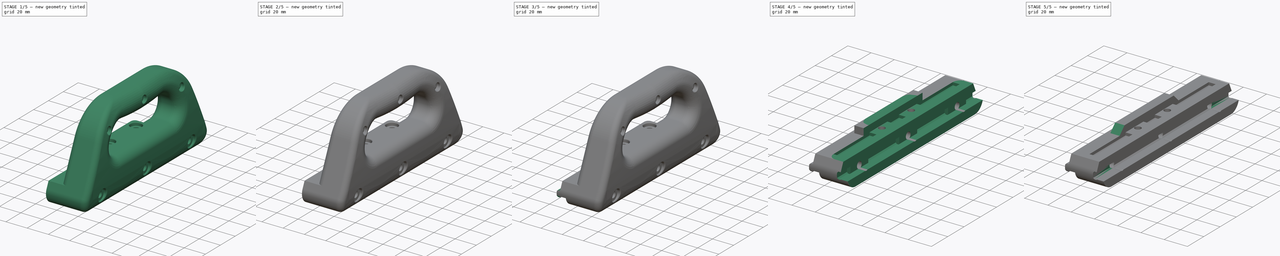
[diagram: build sequence overview — one tinted view per stage of 5, left to right]
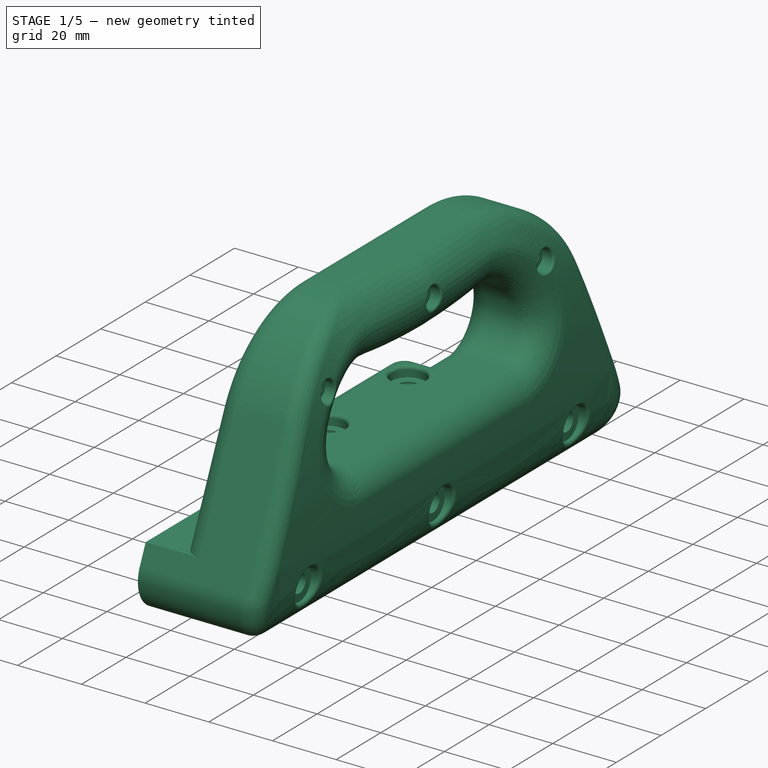
[diagram: stage 1 of 5 — iso view after this stage's code; geometry added in this stage tinted green]
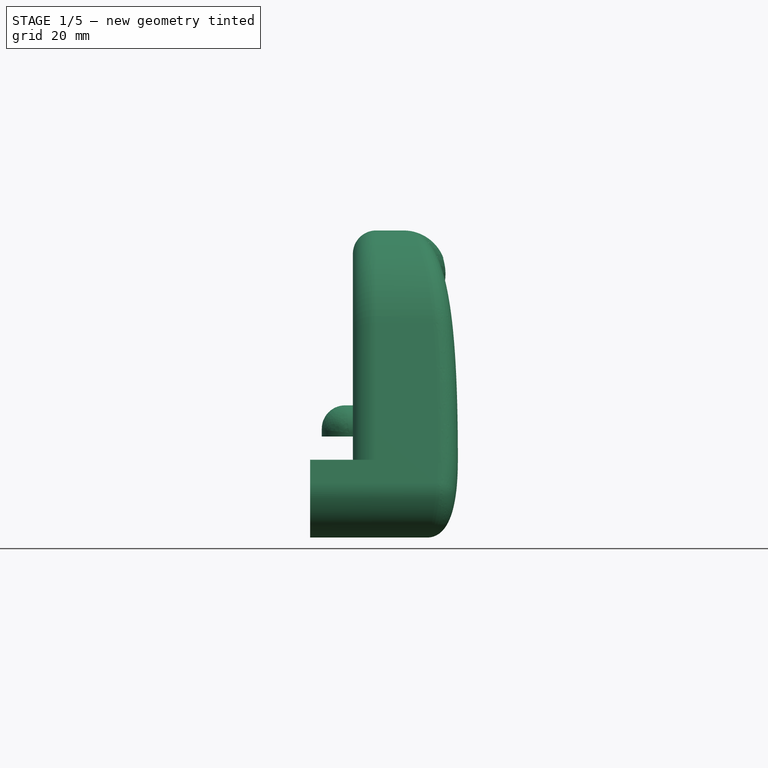
[diagram: stage 1 of 5 — front view after this stage's code; geometry added in this stage tinted green]
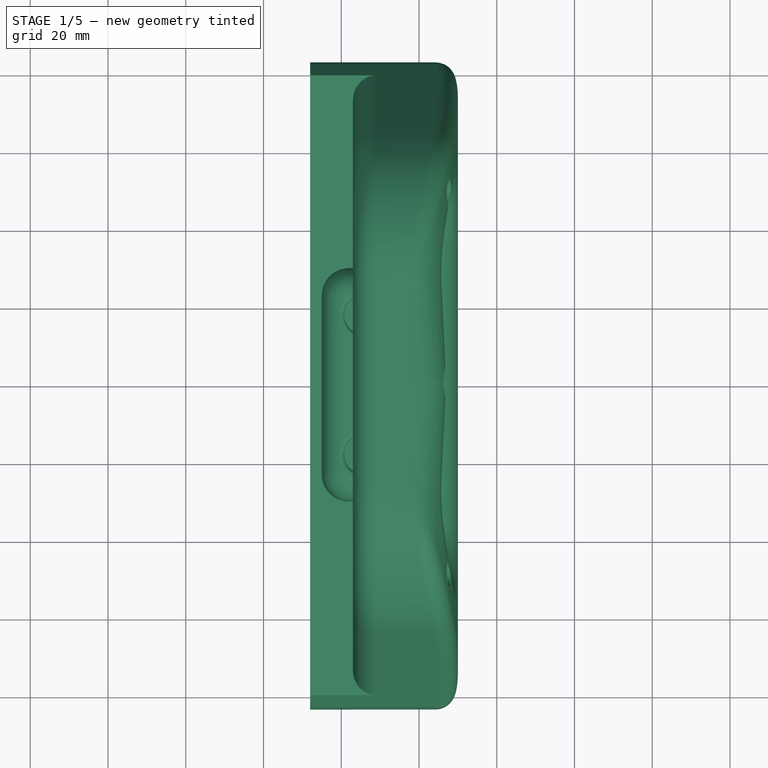
[diagram: stage 1 of 5 — top view after this stage's code; geometry added in this stage tinted green]
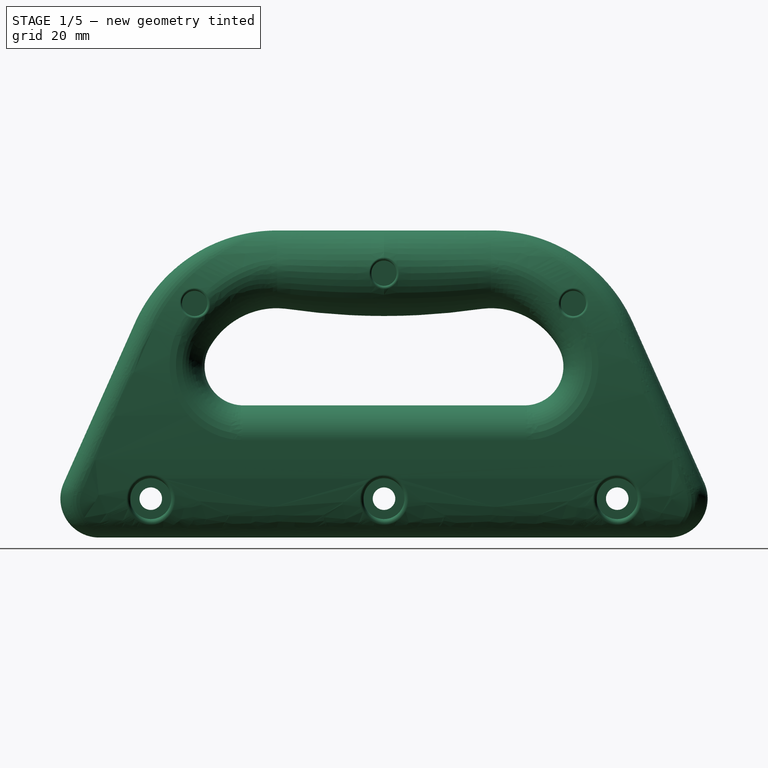
[diagram: stage 1 of 5 — right view after this stage's code; geometry added in this stage tinted green]
FCSTD DOCUMENT  (FreeCAD 1.0R38806 (Git))
Label: Voron-1-R-Handle-Spacer
License: All rights reserved
LicenseURL: https://en.wikipedia.org/wiki/All_rights_reserved
objects: Part::Feature×10, Sketcher::SketchObject×10, PartDesign::Plane×8, PartDesign::Pocket×7, PartDesign::Pad×3, PartDesign::Chamfer×3, Part::MultiFuse×2, PartDesign::FeatureBase×2, PartDesign::Body×2, App::Part×1, Spreadsheet::Sheet×1, Part::Cut×1
note: 86 computed .brp shape members not serialized (recipe doc carries the construction recipe); baked Part::Feature solids carry a one-line shape summary decoded from their .brp

FEATURE [Part::Feature] Part__Feature  label="inner_part"
  shape: bbox 21.69 x 159.5 x 65.3 mm, 107 faces (baked)
FEATURE [Part::Feature] Part__Feature001  label="middle_part"
  shape: bbox 17.27 x 166.5 x 73.37 mm, 96 faces (baked)
FEATURE [Part::Feature] Part__Feature002  label="outer_part"
  shape: bbox 15.39 x 166.8 x 80.41 mm, 83 faces (baked)
FEATURE [App::Part] handle
  Group = -> [Part__Feature001,Part__Feature,Part__Feature002]
  Origin = -> Origin
FEATURE [Part::Feature] Part__Feature003  label="middle_part001"
  shape: bbox 17.27 x 166.5 x 73.37 mm, 96 faces (baked)
FEATURE [Part::Feature] Part__Feature004  label="outer_part001"
  shape: bbox 15.39 x 166.8 x 80.41 mm, 83 faces (baked)
FEATURE [Part::Feature] Part__Feature005  label="Extrusion Profiles v3"
  Placement = pos=(-28,-30,0) rot=(1,8.2e-05,8.2e-05;1.5708rad)
  shape: bbox 20.02 x 100 x 20 mm, 67 faces (baked)
FEATURE [Spreadsheet::Sheet] Spreadsheet
  cells = A1='Spacing width; B1(SpacingWidth)==30 mm; A2='Panel spacing; B2(PanelSpacing)==5.5 mm
FEATURE [Part::Feature] Part__Feature006  label="inner_part001"
  shape: bbox 21.69 x 159.5 x 65.3 mm, 107 faces (baked)
FEATURE [Part::MultiFuse] Fusion
  Shapes = -> [Part__Feature004,Part__Feature003,Part__Feature006]
FEATURE [PartDesign::FeatureBase] BaseFeature
  BaseFeature = -> Fusion
  Suppressed = false
FEATURE [PartDesign::Plane] DatumPlane
  AttachmentSupport = -> [BaseFeature]
  Length = 216.23
  MapMode = 5
  Placement = pos=(22,0,0) rot=(0.57735,-0.57735,-0.57735;2.0944rad)
  ResizeMode = 0
  Width = 131.984
FEATURE [Sketcher::SketchObject] Sketch
  ArcFitTolerance = 1e-06
  AttachmentSupport = -> [DatumPlane]
  ExternalGeometry = -> [BaseFeature]
  FullyConstrained = true
  MakeInternals = false
  MapMode = 5
  Placement = pos=(22,0,0) rot=(0.57735,-0.57735,-0.57735;2.0944rad)
  sketch-geometry (6):
    g0: LineSegment StartX=0.255204 StartY=20 StartZ=0 EndX=159.745 EndY=20 EndZ=0
    g1: LineSegment StartX=159.745 StartY=20 StartZ=0 EndX=162.386 EndY=14.0674 EndZ=0
    g2: ArcOfCircle CenterX=153.251 CenterY=10 CenterZ=0 NormalX=0 NormalY=0 NormalZ=1 AngleXU=0 Radius=10 StartAngle=4.71239 EndAngle=6.70206
    g3: LineSegment StartX=153.251 StartY=0 StartZ=0 EndX=6.74928 EndY=1.07e-14 EndZ=0
    g4: ArcOfCircle CenterX=6.74928 CenterY=10 CenterZ=0 NormalX=0 NormalY=0 NormalZ=1 AngleXU=0 Radius=10 StartAngle=2.72271 EndAngle=4.71239
    g5: LineSegment StartX=-2.38617 StartY=14.0674 StartZ=0 EndX=0.255204 EndY=20 EndZ=0
  constraints (13):
    c: Coincident(g-4,g0)
    c: Coincident(g0,g-8)
    c: Coincident(g0,g1)
    c: Coincident(g1,g-8)
    c: Tangent(g1,g2) = 1.5708
    c: Coincident(g2,g-7)
    c: Tangent(g3,g4) = 1.5708
    c: Coincident(g4,g-4)
    c: Coincident(g4,g5)
    c: Coincident(g5,g0)
    c: Equal(g4,g-5)
    c: Coincident(g3,g2)
    c: PointOnObject(g-6,g4)
FEATURE [PartDesign::Pad] Pad
  BaseFeature = -> BaseFeature
  Direction = (-1,0,0)
  Length = 30
  Length2 = 10
  Profile = -> Sketch
  ReferenceAxis = -> Sketch [N_Axis]
  Refine = true
  Suppressed = false
  Type = 0
  expr: Length = <<Spreadsheet>>.SpacingWidth
FEATURE [Sketcher::SketchObject] Sketch001
  ArcFitTolerance = 1e-06
  AttachmentSupport = -> [DatumPlane]
  ExternalGeometry = -> [Pad]
  FullyConstrained = true
  MakeInternals = false
  MapMode = 5
  Placement = pos=(22,0,0) rot=(0.57735,-0.57735,-0.57735;2.0944rad)
  sketch-geometry (3):
    g0: Circle CenterX=140 CenterY=10 CenterZ=0 NormalX=0 NormalY=0 NormalZ=1 AngleXU=0 Radius=2.9
    g1: Circle CenterX=80 CenterY=10 CenterZ=0 NormalX=0 NormalY=0 NormalZ=1 AngleXU=0 Radius=2.9
    g2: Circle CenterX=20 CenterY=10 CenterZ=0 NormalX=0 NormalY=0 NormalZ=1 AngleXU=0 Radius=2.9
  constraints (6):
    c: Coincident(g0,g-5)
    c: Equal(g0,g-5)
    c: Coincident(g1,g-4)
    c: Equal(g1,g-4)
    c: Coincident(g2,g-3)
    c: Equal(g2,g-3)
FEATURE [PartDesign::Pocket] Pocket
  BaseFeature = -> Pad
  Direction = (1,0,0)
  Length = 30
  Length2 = 5
  Profile = -> Sketch001
  ReferenceAxis = -> Sketch001 [N_Axis]
  Refine = true
  Reversed = true
  Suppressed = false
  Type = 0
  expr: Length = <<Spreadsheet>>.B1
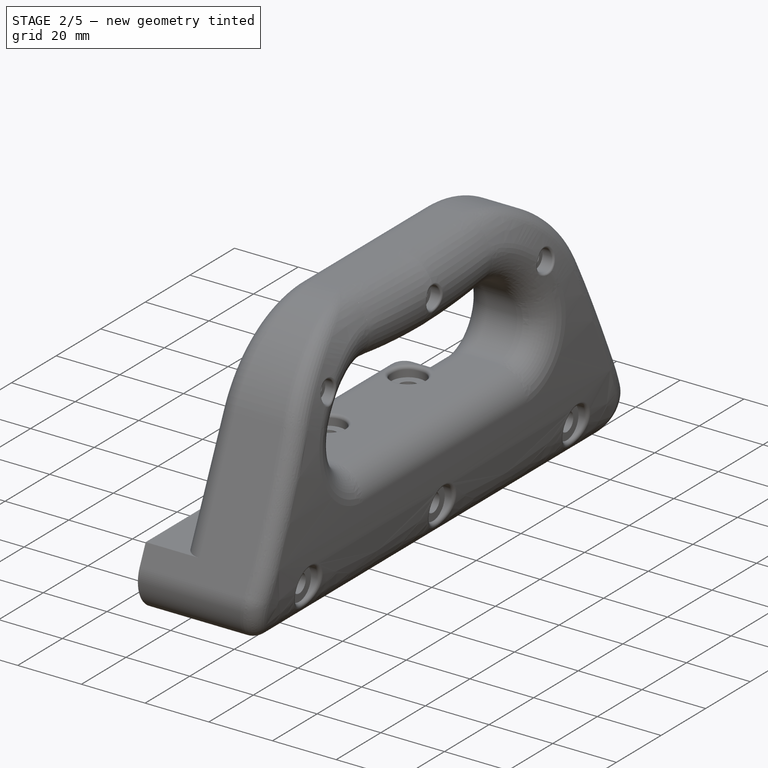
[diagram: stage 2 of 5 — iso view after this stage's code; geometry added in this stage tinted green]
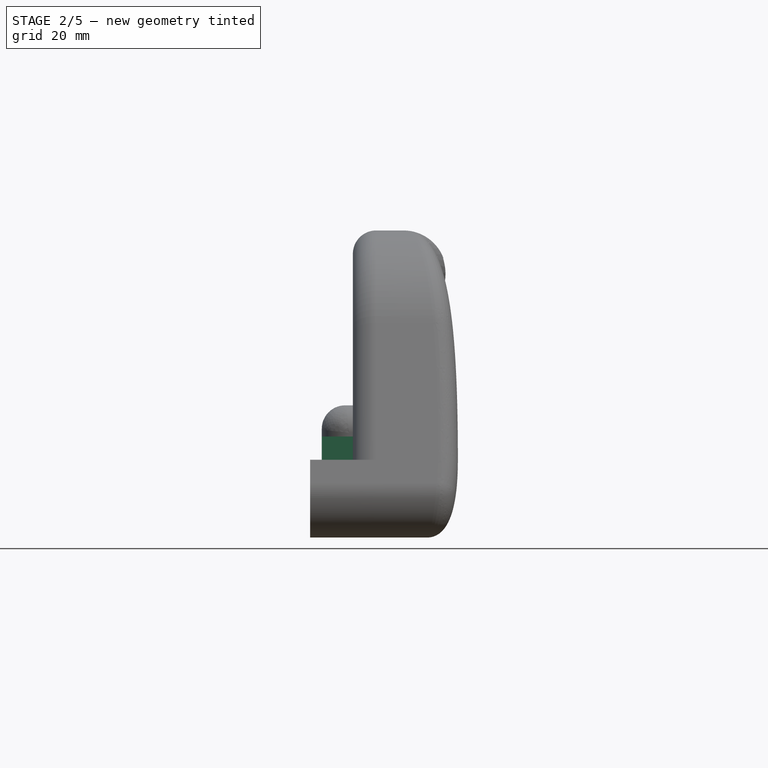
[diagram: stage 2 of 5 — front view after this stage's code; geometry added in this stage tinted green]
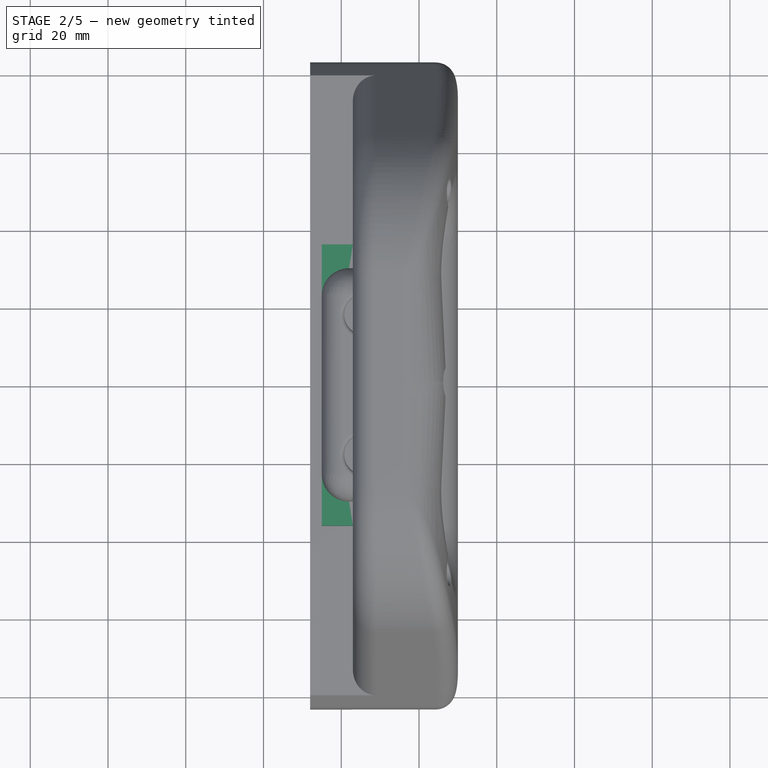
[diagram: stage 2 of 5 — top view after this stage's code; geometry added in this stage tinted green]
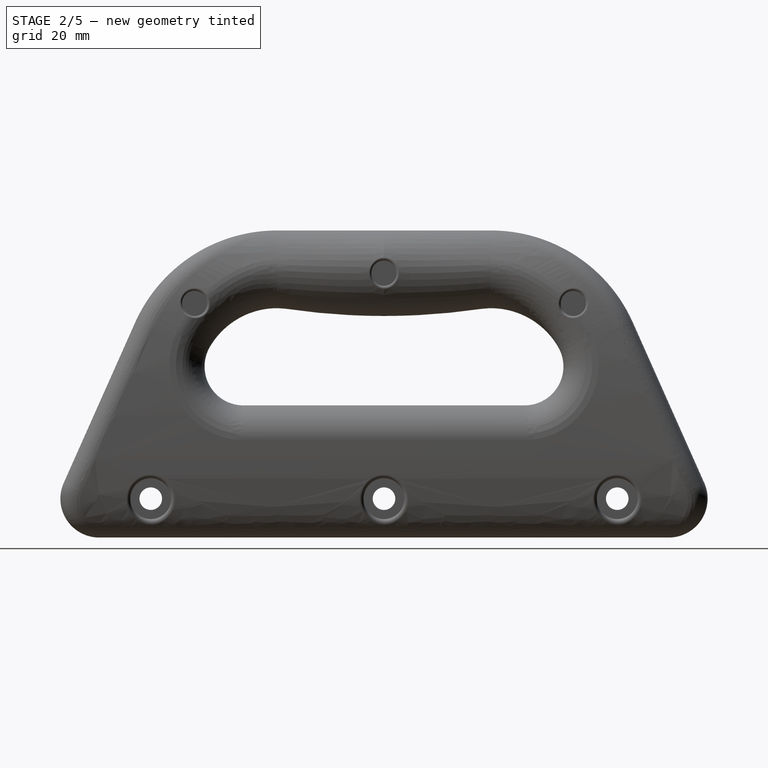
[diagram: stage 2 of 5 — right view after this stage's code; geometry added in this stage tinted green]
FEATURE [PartDesign::Plane] DatumPlane001
  AttachmentSupport = -> [BaseFeature]
  Length = 75.3505
  MapMode = 5
  Placement = pos=(0,0,26) rot=(1,0,0;3.14159rad)
  ResizeMode = 0
  Width = 208.597
FEATURE [Sketcher::SketchObject] Sketch002
  ArcFitTolerance = 1e-06
  AttachmentSupport = -> [DatumPlane001]
  ExternalGeometry = -> [BaseFeature]
  FullyConstrained = true
  MakeInternals = false
  MapMode = 5
  Placement = pos=(0,0,26) rot=(1,0,0;3.14159rad)
  sketch-geometry (4):
    g0: LineSegment StartX=-5 StartY=116.16 StartZ=0 EndX=-5 EndY=43.8397 EndZ=0
    g1: LineSegment StartX=-5 StartY=43.8397 StartZ=0 EndX=3 EndY=43.8397 EndZ=0
    g2: LineSegment StartX=3 StartY=43.8397 StartZ=0 EndX=3 EndY=116.16 EndZ=0
    g3: LineSegment StartX=3 StartY=116.16 StartZ=0 EndX=-5 EndY=116.16 EndZ=0
  constraints (10):
    c: Coincident(g0,g1)
    c: Coincident(g1,g2)
    c: Coincident(g2,g3)
    c: Coincident(g3,g0)
    c: Vertical(g0)
    c: Horizontal(g1)
    c: Horizontal(g3)
    c: Vertical(g-4,g0)
    c: Coincident(g1,g-5)
    c: Coincident(g-6,g2)
FEATURE [PartDesign::Pad] Pad001
  BaseFeature = -> Pocket
  Direction = (0,0,-1)
  Length = 6
  Length2 = 10
  Profile = -> Sketch002
  ReferenceAxis = -> Sketch002 [N_Axis]
  Refine = true
  Suppressed = false
  Type = 0
FEATURE [PartDesign::Plane] DatumPlane002
  AttachmentSupport = -> [Pad001]
  Length = 75.3505
  MapMode = 5
  Placement = pos=(0,-3.7396e-12,20) rot=(0,0,1;0rad)
  ResizeMode = 0
  Width = 208.597
FEATURE [Sketcher::SketchObject] Sketch003
  ArcFitTolerance = 1e-06
  AttachmentSupport = -> [DatumPlane002]
  ExternalGeometry = -> [Pad001]
  FullyConstrained = true
  MakeInternals = false
  MapMode = 5
  Placement = pos=(0,-3.7396e-12,20) rot=(0,0,1;0rad)
  sketch-geometry (2):
    g0: Circle CenterX=6 CenterY=-62 CenterZ=0 NormalX=0 NormalY=0 NormalZ=1 AngleXU=0 Radius=2.7
    g1: Circle CenterX=6 CenterY=-98 CenterZ=0 NormalX=0 NormalY=0 NormalZ=1 AngleXU=0 Radius=2.7
  constraints (4):
    c: Coincident(g0,g-4)
    c: Equal(g0,g-4)
    c: Coincident(g1,g-3)
    c: Equal(g1,g-3)
FEATURE [PartDesign::Pocket] Pocket001
  BaseFeature = -> Pad001
  Direction = (0,1.87e-13,-1)
  Length = 20
  Length2 = 5
  Profile = -> Sketch003
  ReferenceAxis = -> Sketch003 [N_Axis]
  Refine = true
  Suppressed = false
  Type = 0
FEATURE [PartDesign::Plane] DatumPlane003
  AttachmentSupport = -> [Pocket001]
  Length = 75.3505
  MapMode = 5
  Placement = pos=(0,0,1.07e-14) rot=(1,0,0;3.14159rad)
  ResizeMode = 0
  Width = 208.597
FEATURE [Sketcher::SketchObject] Sketch004
  ArcFitTolerance = 1e-06
  AttachmentSupport = -> [DatumPlane003]
  ExternalGeometry = -> [Pocket001]
  FullyConstrained = true
  MakeInternals = false
  MapMode = 5
  Placement = pos=(0,0,1.07e-14) rot=(1,0,0;3.14159rad)
  sketch-geometry (14):
    g0: LineSegment StartX=9.9 StartY=95.7483 StartZ=0 EndX=9.9 EndY=100.252 EndZ=0
    g1: LineSegment StartX=9.9 StartY=100.252 StartZ=0 EndX=6 EndY=102.503 EndZ=0
    g2: LineSegment StartX=6 StartY=102.503 StartZ=0 EndX=2.1 EndY=100.252 EndZ=0
    g3: LineSegment StartX=2.1 StartY=100.252 StartZ=0 EndX=2.1 EndY=95.7483 EndZ=0
    g4: LineSegment StartX=2.1 StartY=95.7483 StartZ=0 EndX=6 EndY=93.4967 EndZ=0
    g5: LineSegment StartX=6 StartY=93.4967 StartZ=0 EndX=9.9 EndY=95.7483 EndZ=0
    g6: Circle [constr] CenterX=6 CenterY=98 CenterZ=0 NormalX=0 NormalY=0 NormalZ=1 AngleXU=0 Radius=4.50333
    g7: LineSegment StartX=9.9 StartY=59.7483 StartZ=0 EndX=9.9 EndY=64.2517 EndZ=0
    g8: LineSegment StartX=9.9 StartY=64.2517 StartZ=0 EndX=6 EndY=66.5033 EndZ=0
    g9: LineSegment StartX=6 StartY=66.5033 StartZ=0 EndX=2.1 EndY=64.2517 EndZ=0
    g10: LineSegment StartX=2.1 StartY=64.2517 StartZ=0 EndX=2.1 EndY=59.7483 EndZ=0
    g11: LineSegment StartX=2.1 StartY=59.7483 StartZ=0 EndX=6 EndY=57.4967 EndZ=0
    g12: LineSegment StartX=6 StartY=57.4967 StartZ=0 EndX=9.9 EndY=59.7483 EndZ=0
    g13: Circle [constr] CenterX=6 CenterY=62 CenterZ=0 NormalX=0 NormalY=0 NormalZ=1 AngleXU=0 Radius=4.50333
  constraints (32):
    c: Coincident(g0,g1)
    c: Coincident(g1,g2)
    c: Coincident(g2,g3)
    c: Coincident(g3,g4)
    c: Coincident(g4,g5)
    c: Coincident(g5,g0)
    c: Equal(g0, g1-g5) x5
    c: PointOnObject(g0,g6)
    c: PointOnObject(g1,g6)
    c: PointOnObject(g2,g6)
    c: PointOnObject(g3,g6)
    c: PointOnObject(g4,g6)
    c: PointOnObject(g5,g6)
    c: Coincident(g6,g-4)
    c: Parallel(g3,g-2)
    c: Distance(g0,g3) = 7.8
    c: Coincident(g7,g8)
    c: Coincident(g8,g9)
    c: Coincident(g9,g10)
    c: Coincident(g10,g11)
    c: Coincident(g11,g12)
    c: Coincident(g12,g7)
    c: Equal(g7, g8-g12) x5
    c: PointOnObject(g7,g13)
    c: PointOnObject(g8,g13)
    c: PointOnObject(g9,g13)
    c: PointOnObject(g10,g13)
    c: PointOnObject(g11,g13)
    c: PointOnObject(g12,g13)
    c: Coincident(g13,g-3)
    c: Equal(g6,g13)
    c: Parallel(g10,g-2)
FEATURE [PartDesign::Pocket] Pocket002
  BaseFeature = -> Pocket001
  Direction = (0,0,1)
  Length = 3.8
  Length2 = 5
  Profile = -> Sketch004
  ReferenceAxis = -> Sketch004 [N_Axis]
  Refine = true
  Suppressed = false
  Type = 0
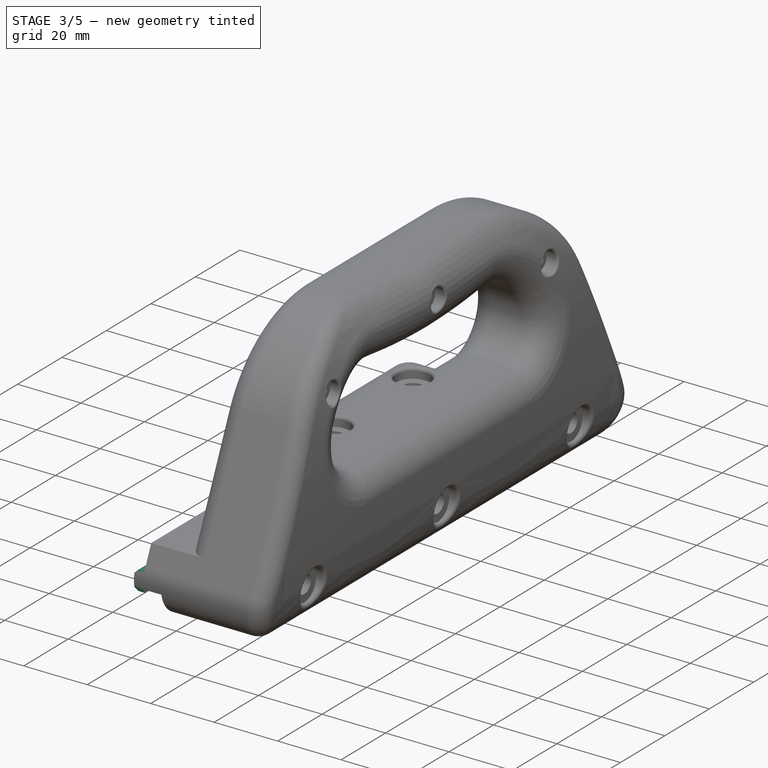
[diagram: stage 3 of 5 — iso view after this stage's code; geometry added in this stage tinted green]
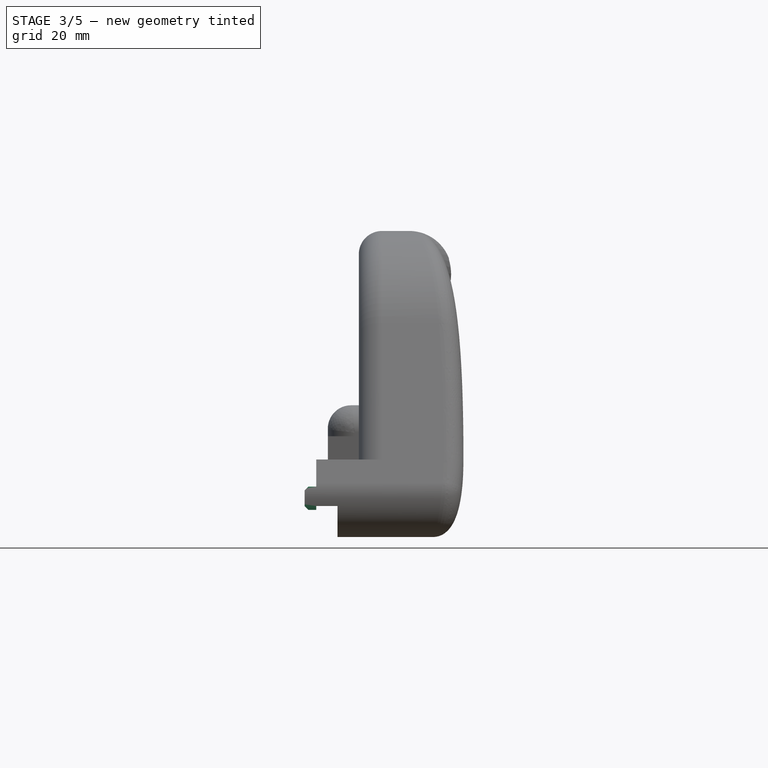
[diagram: stage 3 of 5 — front view after this stage's code; geometry added in this stage tinted green]
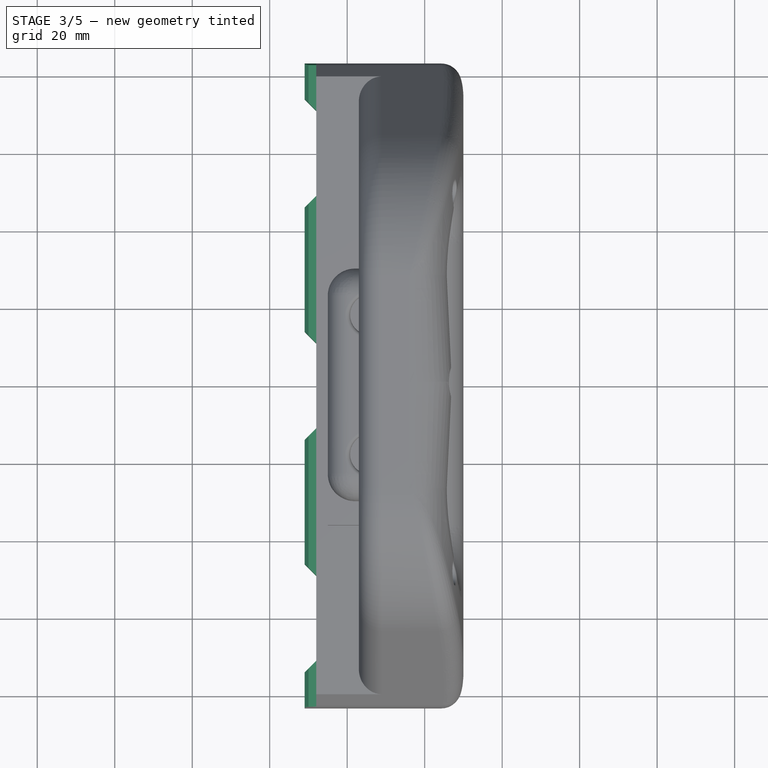
[diagram: stage 3 of 5 — top view after this stage's code; geometry added in this stage tinted green]
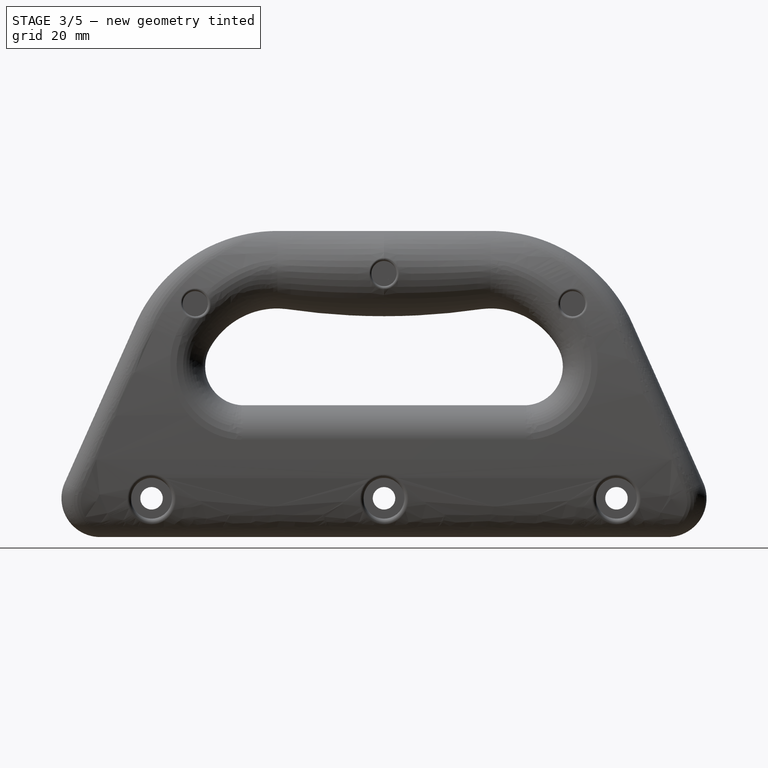
[diagram: stage 3 of 5 — right view after this stage's code; geometry added in this stage tinted green]
FEATURE [PartDesign::Plane] DatumPlane004
  AttachmentSupport = -> [Pocket002]
  Length = 216.23
  MapMode = 5
  Placement = pos=(-8,0,0) rot=(0.57735,-0.57735,-0.57735;2.0944rad)
  ResizeMode = 0
  Width = 131.984
FEATURE [Sketcher::SketchObject] Sketch005
  ArcFitTolerance = 1e-06
  AttachmentSupport = -> [DatumPlane004]
  ExternalGeometry = -> [Pocket002,BaseFeature]
  FullyConstrained = true
  MakeInternals = false
  MapMode = 5
  Placement = pos=(-8,0,0) rot=(0.57735,-0.57735,-0.57735;2.0944rad)
  sketch-geometry (16):
    g0: LineSegment StartX=31 StartY=13 StartZ=0 EndX=31 EndY=7 EndZ=0
    g1: LineSegment StartX=31 StartY=7 StartZ=0 EndX=69 EndY=7 EndZ=0
    g2: LineSegment StartX=69 StartY=7 StartZ=0 EndX=69 EndY=13 EndZ=0
    g3: LineSegment StartX=69 StartY=13 StartZ=0 EndX=31 EndY=13 EndZ=0
    g4: LineSegment StartX=91 StartY=13 StartZ=0 EndX=91 EndY=7 EndZ=0
    g5: LineSegment StartX=91 StartY=7 StartZ=0 EndX=129 EndY=7 EndZ=0
    g6: LineSegment StartX=129 StartY=7 StartZ=0 EndX=129 EndY=13 EndZ=0
    g7: LineSegment StartX=129 StartY=13 StartZ=0 EndX=91 EndY=13 EndZ=0
    g8: LineSegment StartX=9 StartY=13 StartZ=0 EndX=-2.79011 EndY=13 EndZ=0
    g9: LineSegment StartX=9 StartY=13 StartZ=0 EndX=9 EndY=7 EndZ=0
    g10: LineSegment StartX=9 StartY=7 StartZ=0 EndX=-2.79011 EndY=7 EndZ=0
    g11: ArcOfCircle CenterX=6.74931 CenterY=10 CenterZ=0 NormalX=0 NormalY=0 NormalZ=1 AngleXU=0 Radius=10 StartAngle=2.8369 EndAngle=3.44628
    g12: LineSegment StartX=151 StartY=13 StartZ=0 EndX=151 EndY=7 EndZ=0
    g13: LineSegment StartX=162.79 StartY=7 StartZ=0 EndX=151 EndY=7 EndZ=0
    g14: LineSegment StartX=162.79 StartY=13 StartZ=0 EndX=151 EndY=13 EndZ=0
    g15: ArcOfCircle CenterX=153.251 CenterY=10 CenterZ=0 NormalX=0 NormalY=0 NormalZ=1 AngleXU=0 Radius=10 StartAngle=5.97849 EndAngle=6.58788
  constraints (38):
    c: Coincident(g0,g1)
    c: Coincident(g1,g2)
    c: Coincident(g2,g3)
    c: Coincident(g3,g0)
    c: Vertical(g0)
    c: Vertical(g2)
    c: Horizontal(g1)
    c: Horizontal(g3)
    c: Coincident(g0,g-8)
    c: Coincident(g1,g-5)
    c: Coincident(g4,g5)
    c: Coincident(g5,g6)
    c: Coincident(g6,g7)
    c: Coincident(g7,g4)
    c: Vertical(g4)
    c: Vertical(g6)
    c: Horizontal(g5)
    c: Horizontal(g7)
    c: Coincident(g4,g-7)
    c: Coincident(g5,g-6)
    c: Coincident(g8,g-10)
    c: Coincident(g8,g-10)
    c: Coincident(g9,g8)
    c: Coincident(g9,g-11)
    c: Coincident(g10,g9)
    c: Coincident(g10,g-11)
    c: Coincident(g11,g10)
    c: Coincident(g11,g8)
    c: Tangent(g11,g-3)
    c: Coincident(g12,g-14)
    c: Coincident(g12,g-13)
    c: Coincident(g13,g-13)
    c: Coincident(g13,g12)
    c: Coincident(g14,g-14)
    c: Coincident(g14,g12)
    c: Coincident(g15,g14)
    c: Coincident(g15,g13)
    c: Coincident(g15,g-15)
FEATURE [PartDesign::Pad] Pad002
  BaseFeature = -> Pocket002
  Direction = (-1,0,0)
  Length = 3
  Length2 = 10
  Profile = -> Sketch005
  ReferenceAxis = -> Sketch005 [N_Axis]
  Refine = true
  Suppressed = false
  Type = 0
FEATURE [PartDesign::Chamfer] Chamfer
  Angle = 45
  Base = -> Pad002 [Edge391,Edge406,Edge415,Edge419,Edge410,Edge395,Edge402,Edge398]
  BaseFeature = -> Pad002
  ChamferType = 0
  FlipDirection = false
  Refine = true
  Size = 1
  Size2 = 1
  SupportTransform = false
  Suppressed = false
  UseAllEdges = false
FEATURE [Sketcher::SketchObject] Sketch006
  ArcFitTolerance = 1e-06
  AttachmentSupport = -> [DatumPlane004]
  ExternalGeometry = -> [Chamfer]
  FullyConstrained = true
  MakeInternals = false
  MapMode = 5
  Placement = pos=(-8,0,0) rot=(0.57735,-0.57735,-0.57735;2.0944rad)
  sketch-geometry (4):
    g0: LineSegment StartX=-3.04868 StartY=8 StartZ=0 EndX=-3.04868 EndY=1.07e-14 EndZ=0
    g1: LineSegment StartX=-3.04868 StartY=1.03e-14 StartZ=0 EndX=163.049 EndY=1.03e-14 EndZ=0
    g2: LineSegment StartX=163.049 StartY=1.03e-14 StartZ=0 EndX=163.049 EndY=8 EndZ=0
    g3: LineSegment StartX=163.049 StartY=8 StartZ=0 EndX=-3.04868 EndY=8 EndZ=0
  constraints (10):
    c: Coincident(g0,g1)
    c: Coincident(g1,g2)
    c: Coincident(g2,g3)
    c: Coincident(g3,g0)
    c: Vertical(g0)
    c: Vertical(g2)
    c: Horizontal(g1)
    c: Coincident(g-4,g2)
    c: Coincident(g-3,g0)
    c: PointOnObject(g-5,g1)
FEATURE [PartDesign::Pocket] Pocket003
  BaseFeature = -> Chamfer
  Direction = (1,0,0)
  Length = 5.5
  Length2 = 5
  Profile = -> Sketch006
  ReferenceAxis = -> Sketch006 [N_Axis]
  Refine = true
  Suppressed = false
  Type = 0
  expr: Length = <<Spreadsheet>>.PanelSpacing
FEATURE [PartDesign::Chamfer] Chamfer001
  Angle = 45
  Base = -> Pocket003 [Edge66,Edge86,Edge106,Edge94,Edge74,Edge8]
  BaseFeature = -> Pocket003
  ChamferType = 0
  FlipDirection = false
  Refine = true
  Size = 2.99
  Size2 = 1
  SupportTransform = false
  Suppressed = false
  UseAllEdges = false
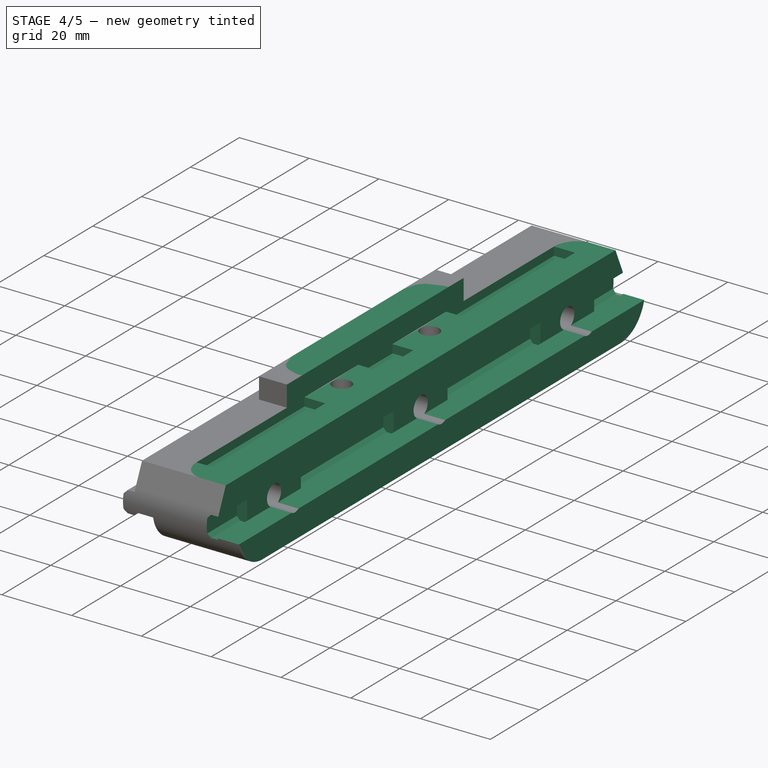
[diagram: stage 4 of 5 — iso view after this stage's code; geometry added in this stage tinted green]
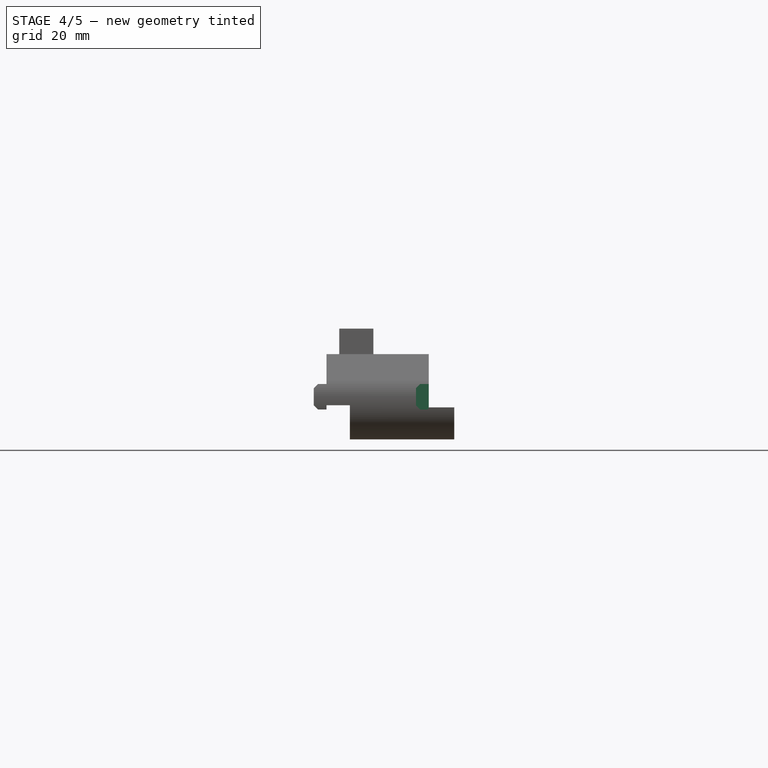
[diagram: stage 4 of 5 — front view after this stage's code; geometry added in this stage tinted green]
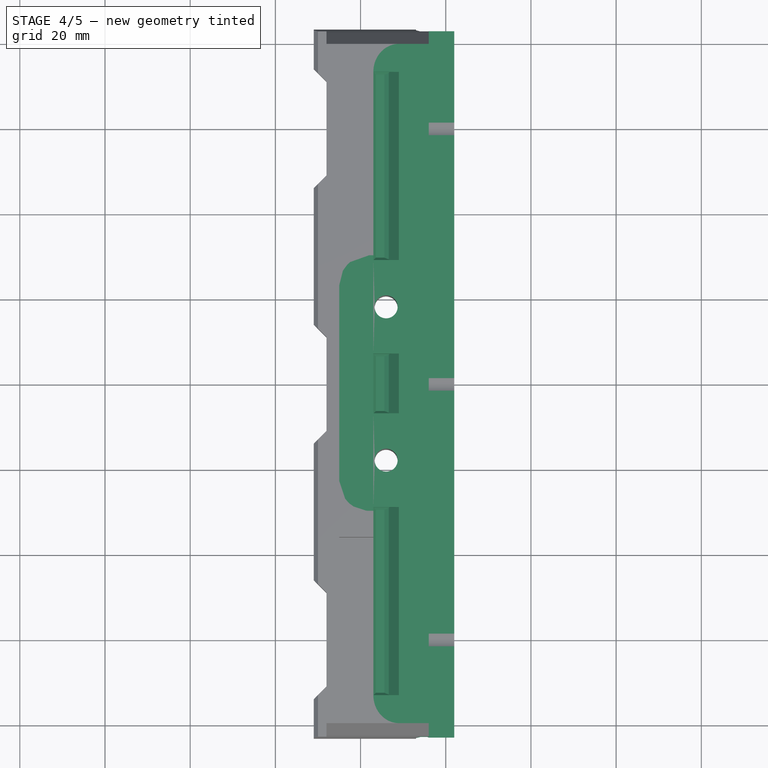
[diagram: stage 4 of 5 — top view after this stage's code; geometry added in this stage tinted green]
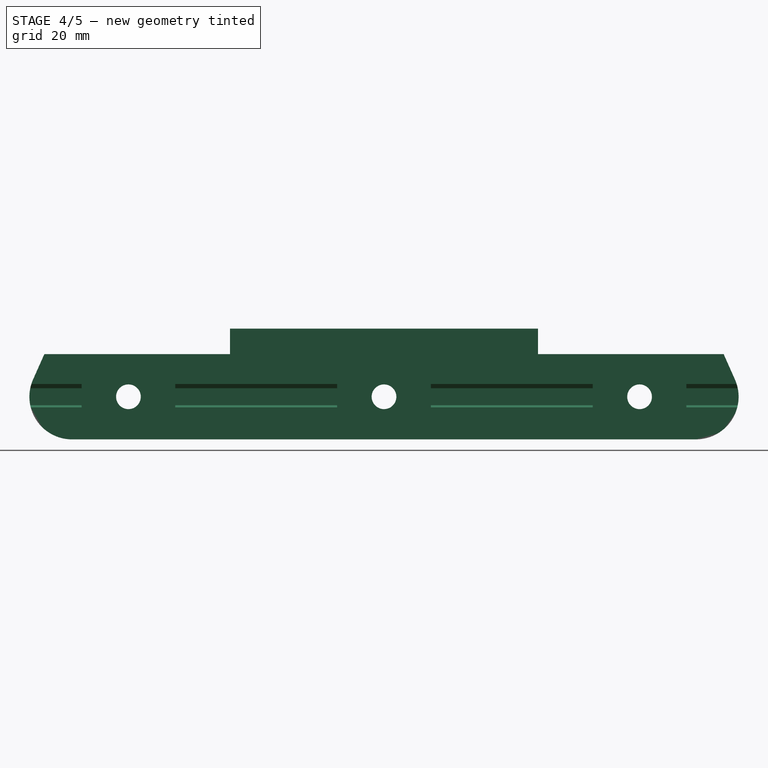
[diagram: stage 4 of 5 — right view after this stage's code; geometry added in this stage tinted green]
FEATURE [Part::Feature] Part__Feature007  label="middle_part002"
  shape: bbox 17.27 x 166.5 x 73.37 mm, 96 faces (baked)
FEATURE [Part::Feature] Part__Feature008  label="outer_part002"
  shape: bbox 15.39 x 166.8 x 80.41 mm, 83 faces (baked)
FEATURE [Part::Feature] Part__Feature009  label="inner_part002"
  shape: bbox 21.69 x 159.5 x 65.3 mm, 107 faces (baked)
FEATURE [Part::MultiFuse] Fusion001
  Shapes = -> [Part__Feature008,Part__Feature007,Part__Feature009]
FEATURE [PartDesign::Body] Body
  AllowCompound = false
  BaseFeature = -> Fusion
  Group = -> [BaseFeature,DatumPlane,Sketch,Pad,Sketch001,Pocket,DatumPlane001,Sketch002,Pad001,DatumPlane002,Sketch003,Pocket001,DatumPlane003,Sketch004,Pocket002,DatumPlane004,Sketch005,Pad002,Chamfer,Sketch006,Pocket003,Chamfer001]
  Origin = -> Origin001
  Tip = -> Chamfer001
FEATURE [Part::Cut] Cut
  Base = -> Body
  Tool = -> Fusion001
FEATURE [PartDesign::FeatureBase] BaseFeature001
  BaseFeature = -> Cut
  Suppressed = false
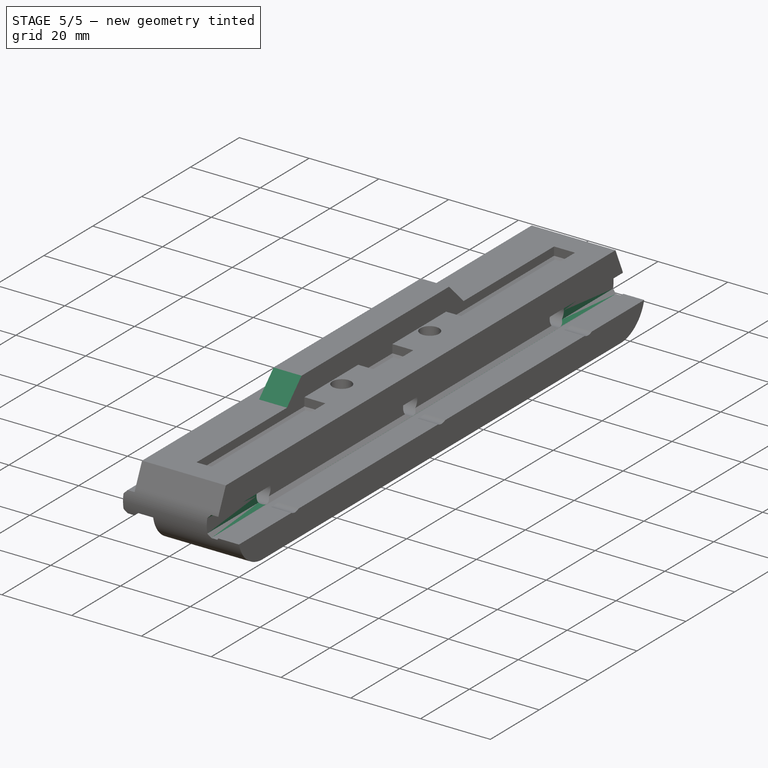
[diagram: stage 5 of 5 — iso view after this stage's code; geometry added in this stage tinted green]
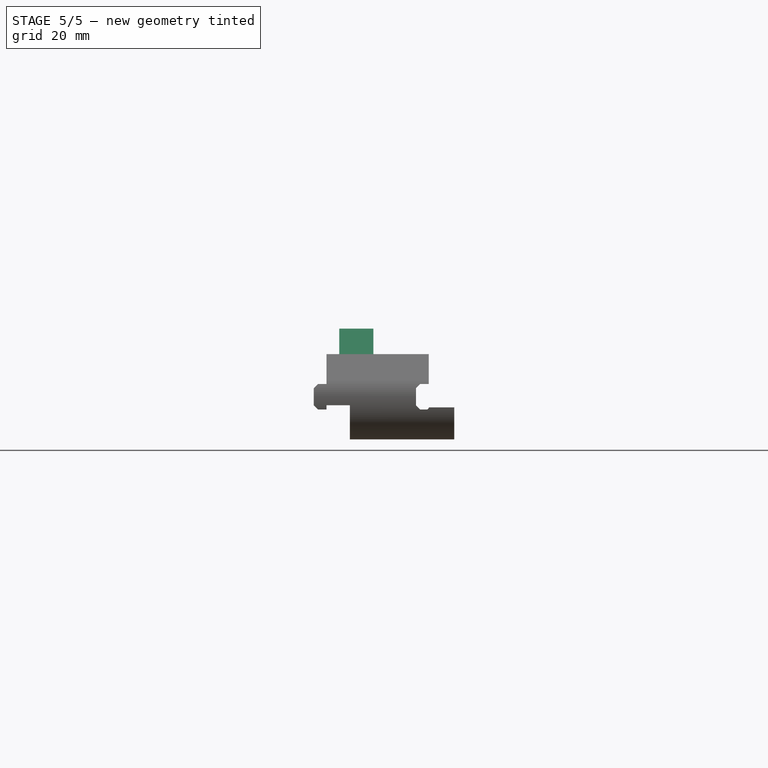
[diagram: stage 5 of 5 — front view after this stage's code; geometry added in this stage tinted green]
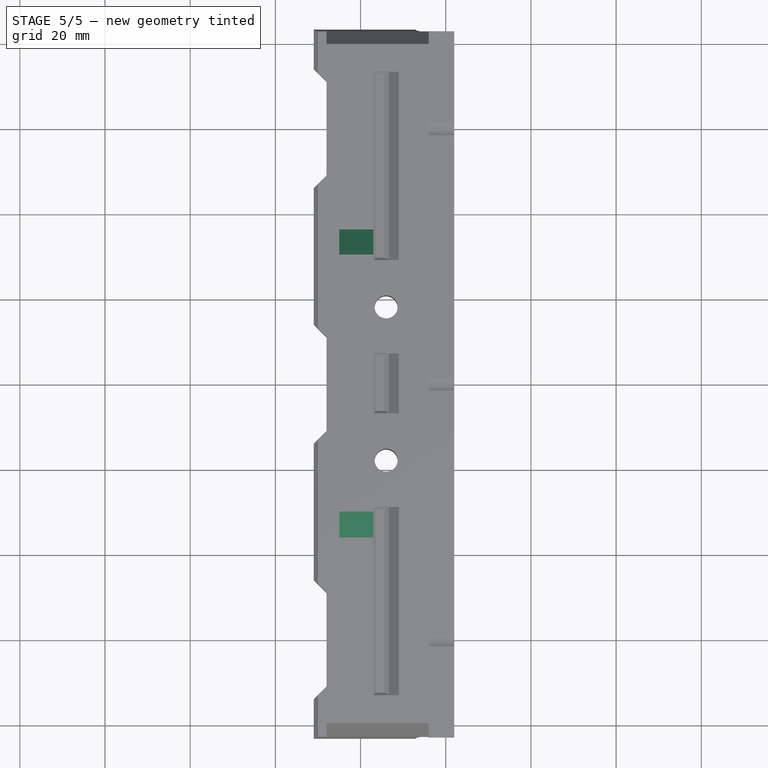
[diagram: stage 5 of 5 — top view after this stage's code; geometry added in this stage tinted green]
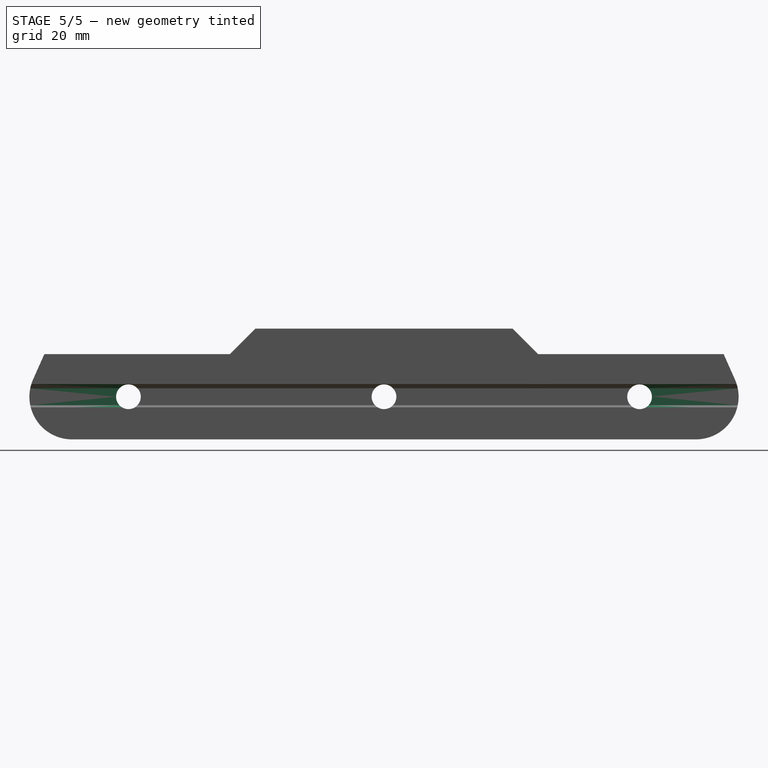
[diagram: stage 5 of 5 — right view after this stage's code; geometry added in this stage tinted green]
FEATURE [PartDesign::Plane] DatumPlane005
  AttachmentOffset = pos=(0,0,0) rot=(0,1,0;1.5708rad)
  AttachmentSupport = -> [BaseFeature001]
  Length = 60.0995
  MapMode = 7
  Placement = pos=(16,2.79011,13) rot=(0,0.707107,0.707107;3.14159rad)
  ResizeMode = 0
  Width = 61.0995
FEATURE [Sketcher::SketchObject] Sketch007
  ArcFitTolerance = 1e-06
  AttachmentSupport = -> [DatumPlane005]
  ExternalGeometry = -> [BaseFeature001]
  FullyConstrained = true
  MakeInternals = false
  MapMode = 5
  Placement = pos=(16,2.79011,13) rot=(0,0.707107,0.707107;3.14159rad)
  sketch-geometry (7):
    g0: LineSegment StartX=0 StartY=0 StartZ=0 EndX=2 EndY=0 EndZ=0
    g1: LineSegment StartX=3 StartY=-1 StartZ=0 EndX=2 EndY=0 EndZ=0
    g2: LineSegment StartX=3 StartY=-1 StartZ=0 EndX=3 EndY=-5 EndZ=0
    g3: LineSegment StartX=3 StartY=-5 StartZ=0 EndX=2 EndY=-6 EndZ=0
    g4: LineSegment StartX=2 StartY=-6 StartZ=0 EndX=0.34 EndY=-6 EndZ=0
    g5: LineSegment StartX=0.34 StartY=-6 StartZ=0 EndX=0 EndY=-5.66 EndZ=0
    g6: LineSegment StartX=0 StartY=-5.66 StartZ=0 EndX=0 EndY=0 EndZ=0
  constraints (14):
    c: Coincident(g0,g-1)
    c: Coincident(g0,g-3)
    c: Coincident(g1,g-4)
    c: Coincident(g1,g0)
    c: Coincident(g2,g1)
    c: Coincident(g2,g-5)
    c: Coincident(g3,g2)
    c: Coincident(g3,g-6)
    c: Coincident(g4,g3)
    c: Coincident(g4,g-7)
    c: Coincident(g5,g4)
    c: Coincident(g5,g-7)
    c: Coincident(g6,g5)
    c: Coincident(g6,g0)
FEATURE [PartDesign::Pocket] Pocket004
  BaseFeature = -> BaseFeature001
  Direction = (0,-1,2e-16)
  Length = 180
  Length2 = 5
  Profile = -> Sketch007
  ReferenceAxis = -> Sketch007 [N_Axis]
  Refine = true
  Suppressed = false
  Type = 0
FEATURE [PartDesign::Chamfer] Chamfer002
  Angle = 45
  Base = -> Pocket004 [Edge342,Edge346]
  BaseFeature = -> Pocket004
  ChamferType = 0
  FlipDirection = false
  Refine = true
  Size = 5.99
  Size2 = 1
  SupportTransform = false
  Suppressed = false
  UseAllEdges = false
FEATURE [PartDesign::Plane] DatumPlane007
  AttachmentSupport = -> [Chamfer002]
  Length = 207.824
  MapMode = 5
  Placement = pos=(-8,0,0) rot=(0.57735,-0.57735,-0.57735;2.0944rad)
  ResizeMode = 0
  Width = 70.5955
FEATURE [Sketcher::SketchObject] Sketch008
  ArcFitTolerance = 1e-06
  AttachmentSupport = -> [DatumPlane007]
  FullyConstrained = true
  MakeInternals = false
  MapMode = 5
  Placement = pos=(-8,0,0) rot=(0.57735,-0.57735,-0.57735;2.0944rad)
  sketch-geometry (24):
    g0: LineSegment [constr] StartX=20 StartY=10 StartZ=0 EndX=13.8988 EndY=10 EndZ=0
    g1: LineSegment [constr] StartX=20 StartY=10 StartZ=0 EndX=146.101 EndY=10 EndZ=0
    g2: LineSegment StartX=146.101 StartY=8 StartZ=0 EndX=133.899 EndY=8 EndZ=0
    g3: GeomPoint X=22.0506 Y=12.0506 Z=0
    g4: LineSegment [constr] StartX=20 StartY=10 StartZ=0 EndX=22.0506 EndY=12.0506 EndZ=0
    g5: LineSegment [constr] StartX=22.0506 StartY=12.0506 StartZ=0 EndX=13.8988 EndY=12.0506 EndZ=0
    g6: LineSegment [constr] StartX=22.0506 StartY=12.0506 StartZ=0 EndX=146.101 EndY=12.0506 EndZ=0
    g7: GeomPoint [constr] X=17.9494 Y=12.0506 Z=0
    g8: LineSegment [constr] StartX=17.9494 StartY=12.0506 StartZ=0 EndX=20 EndY=10 EndZ=0
    g9: LineSegment StartX=22.0506 StartY=12.0506 StartZ=0 EndX=17.9494 EndY=12.0506 EndZ=0
    g10: LineSegment StartX=17.9494 StartY=12.0506 StartZ=0 EndX=13.8988 EndY=8 EndZ=0
    g11: LineSegment StartX=13.8988 StartY=8 StartZ=0 EndX=26.1012 EndY=8 EndZ=0
    g12: LineSegment StartX=22.0506 StartY=12.0506 StartZ=0 EndX=26.1012 EndY=8 EndZ=0
    g13: GeomPoint [constr] X=137.949 Y=12.0506 Z=0
    g14: GeomPoint [constr] X=142.051 Y=12.0506 Z=0
    g15: LineSegment StartX=133.899 StartY=8 StartZ=0 EndX=137.949 EndY=12.0506 EndZ=0
    g16: LineSegment StartX=142.051 StartY=12.0506 StartZ=0 EndX=146.101 EndY=8 EndZ=0
    g17: LineSegment StartX=137.949 StartY=12.0506 StartZ=0 EndX=142.051 EndY=12.0506 EndZ=0
    g18: GeomPoint [constr] X=77.9494 Y=12.0506 Z=0
    g19: GeomPoint [constr] X=82.0506 Y=12.0506 Z=0
    g20: LineSegment StartX=77.9494 StartY=12.0506 StartZ=0 EndX=82.0506 EndY=12.0506 EndZ=0
    g21: LineSegment StartX=77.9494 StartY=12.0506 StartZ=0 EndX=73.8988 EndY=8 EndZ=0
    g22: LineSegment StartX=82.0506 StartY=12.0506 StartZ=0 EndX=86.1012 EndY=8 EndZ=0
    g23: LineSegment StartX=86.1012 StartY=8 StartZ=0 EndX=73.8988 EndY=8 EndZ=0
  constraints (58):
    c: Coincident(g0,g-11)
    c: Horizontal(g0)
    c: Coincident(g1,g0)
    c: PointOnObject(g10,g-3)
    c: Vertical(g10,g0)
    c: PointOnObject(g2,g-7)
    c: PointOnObject(g2,g-6)
    c: Vertical(g1,g2)
    c: PointOnObject(g3,g-10)
    c: Coincident(g4,g0)
    c: Coincident(g4,g3)
    c: Angle(g1,g4) = 0.785398
    c: Horizontal(g5)
    c: Coincident(g6,g3)
    c: Horizontal(g6)
    c: Vertical(g1,g6)
    c: Vertical(g5,g0)
    c: PointOnObject(g7,g-10)
    c: PointOnObject(g7,g5)
    c: Coincident(g8,g7)
    c: Coincident(g8,g0)
    c: Coincident(g9,g3)
    c: Coincident(g9,g7)
    c: Coincident(g10,g7)
    c: PointOnObject(g11,g-4)
    c: Coincident(g11,g10)
    c: Angle(g11,g10) = 0.785398
    c: Coincident(g5,g3)
    c: Coincident(g12,g3)
    c: Coincident(g12,g11)
    c: Angle(g12,g11) = 0.785398
    c: PointOnObject(g13,g-8)
    c: PointOnObject(g14,g-8)
    c: PointOnObject(g13,g6)
    c: PointOnObject(g14,g6)
    c: Coincident(g15,g2)
    c: Coincident(g15,g13)
    c: Coincident(g16,g14)
    c: Coincident(g16,g2)
    c: Angle(g2,g15) = 0.785398
    c: Angle(g16,g2) = 0.785398
    c: Coincident(g17,g13)
    c: Coincident(g17,g14)
    c: PointOnObject(g18,g-12)
    c: PointOnObject(g19,g-12)
    c: PointOnObject(g18,g6)
    c: PointOnObject(g19,g6)
    c: Coincident(g20,g18)
    c: Coincident(g20,g19)
    c: PointOnObject(g-12,g1)
    c: Coincident(g21,g18)
    c: PointOnObject(g21,g-5)
    c: Coincident(g22,g19)
    c: PointOnObject(g22,g-13)
    c: Coincident(g23,g22)
    c: Coincident(g23,g21)
    c: Angle(g23,g21) = 0.785398
    c: Angle(g22,g23) = 0.785398
FEATURE [PartDesign::Pocket] Pocket005
  BaseFeature = -> Chamfer002
  Direction = (1,0,0)
  Length = 5.5
  Length2 = 5
  Profile = -> Sketch008
  ReferenceAxis = -> Sketch008 [N_Axis]
  Refine = true
  Suppressed = false
  Type = 0
FEATURE [PartDesign::Plane] DatumPlane006
  AttachmentOffset = pos=(0,-4,0) rot=(1,0,0;1.5708rad)
  AttachmentSupport = -> [Pocket005]
  Length = 60.0995
  MapMode = 5
  Placement = pos=(0,4,1.07e-14) rot=(1,0,0;4.71239rad)
  ResizeMode = 0
  Width = 61.0995
FEATURE [Sketcher::SketchObject] Sketch009
  ArcFitTolerance = 1e-06
  AttachmentSupport = -> [DatumPlane006]
  FullyConstrained = true
  MakeInternals = false
  MapMode = 5
  Placement = pos=(0,4,1.07e-14) rot=(-1,0,0;1.5708rad)
  sketch-geometry (3):
    g0: LineSegment StartX=-7 StartY=-7 StartZ=0 EndX=-8 EndY=-7 EndZ=0
    g1: LineSegment StartX=-8 StartY=-7 StartZ=0 EndX=-7 EndY=-8 EndZ=0
    g2: LineSegment StartX=-7 StartY=-8 StartZ=0 EndX=-7 EndY=-7 EndZ=0
  constraints (6):
    c: Coincident(g0,g-4)
    c: Symmetric(g-3,g-3,g0)
    c: Coincident(g1,g0)
    c: Coincident(g1,g-4)
    c: Coincident(g2,g1)
    c: Coincident(g2,g0)
FEATURE [PartDesign::Pocket] Pocket006
  BaseFeature = -> Pocket005
  Direction = (0,-1,-2e-16)
  Length = 300
  Length2 = 5
  Profile = -> Sketch009
  ReferenceAxis = -> Sketch009 [N_Axis]
  Refine = true
  Suppressed = false
  Type = 0
FEATURE [PartDesign::Body] Body001
  AllowCompound = false
  BaseFeature = -> Cut
  Group = -> [BaseFeature001,DatumPlane005,Sketch007,Pocket004,Chamfer002,Sketch008,Pocket005,DatumPlane006,Sketch009,Pocket006,DatumPlane007]
  Origin = -> Origin002
  Tip = -> Pocket006
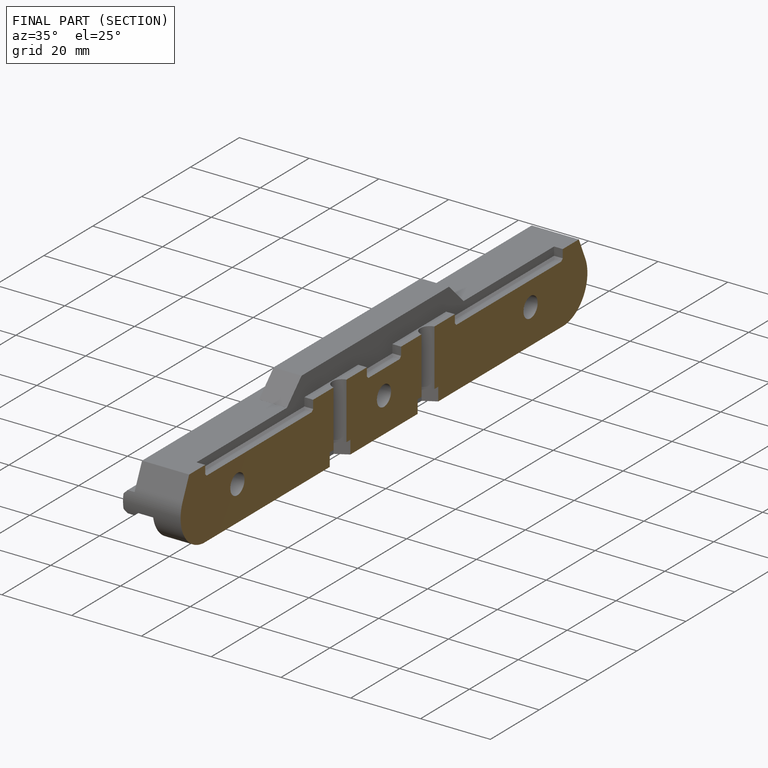
[diagram: finished part — half-section view (interior)]
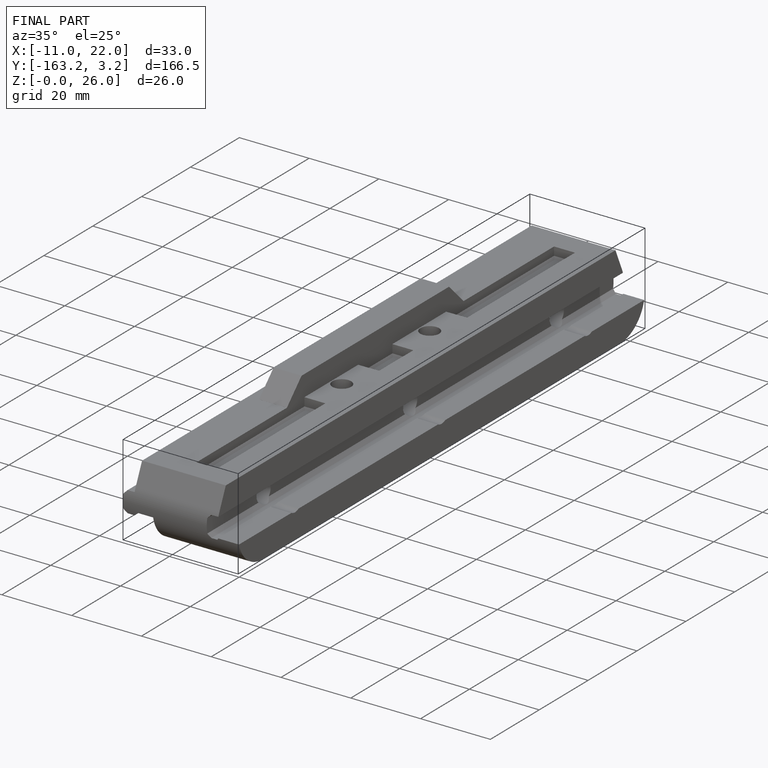
[diagram: finished part — iso view with bounding-box wireframe]
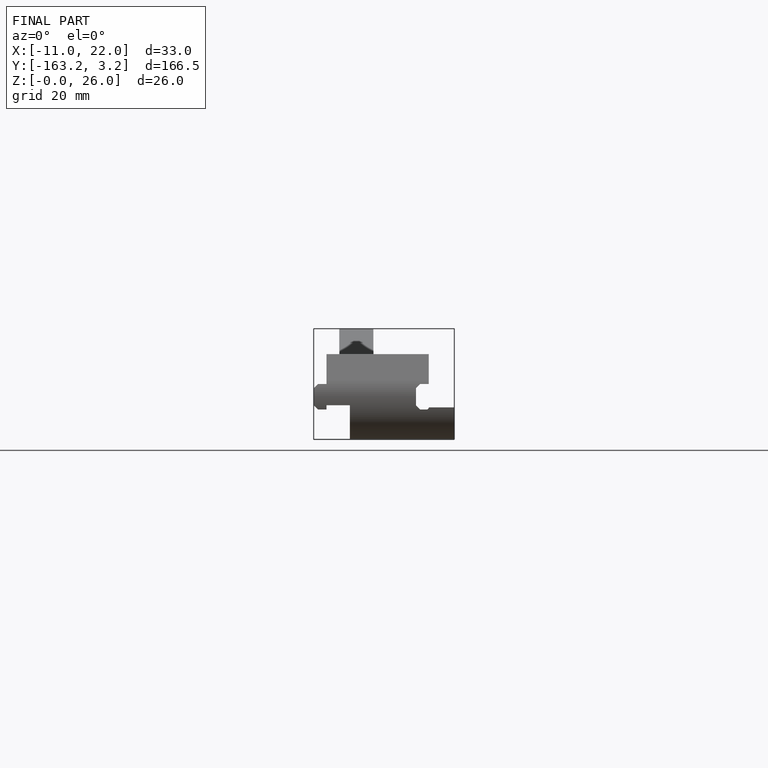
[diagram: finished part — front view with bounding-box wireframe]
